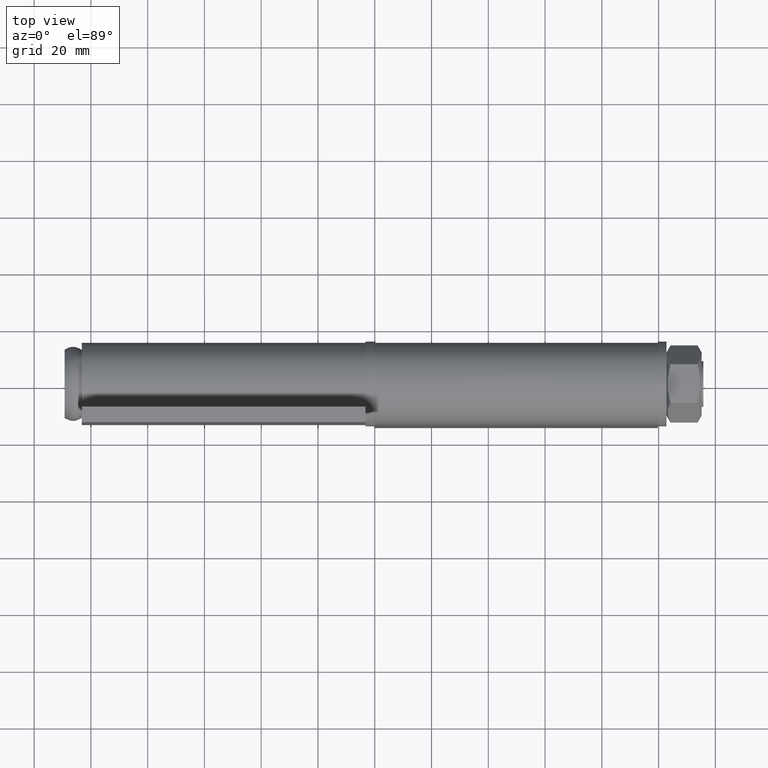
[diagram: clean part render]
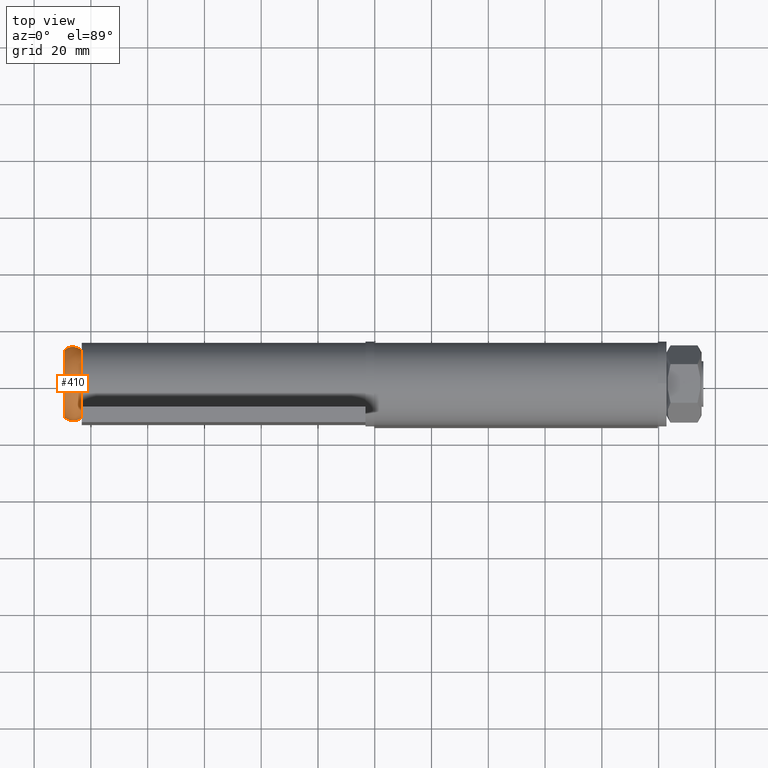
[diagram: same view with one face highlighted and labeled with its STEP entity id]
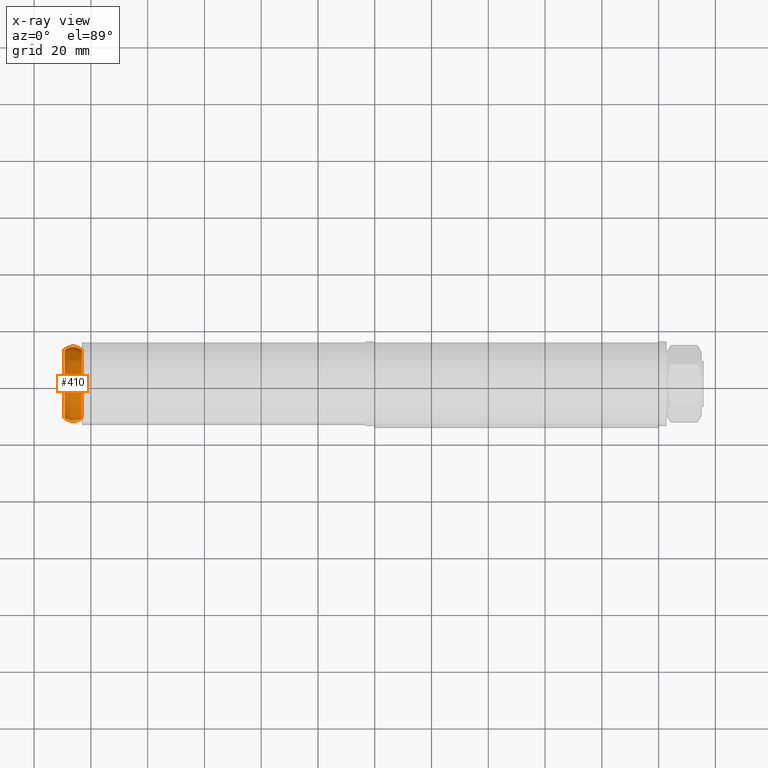
[diagram: x-ray of the same camera — body ghosted, the highlighted face saturated]
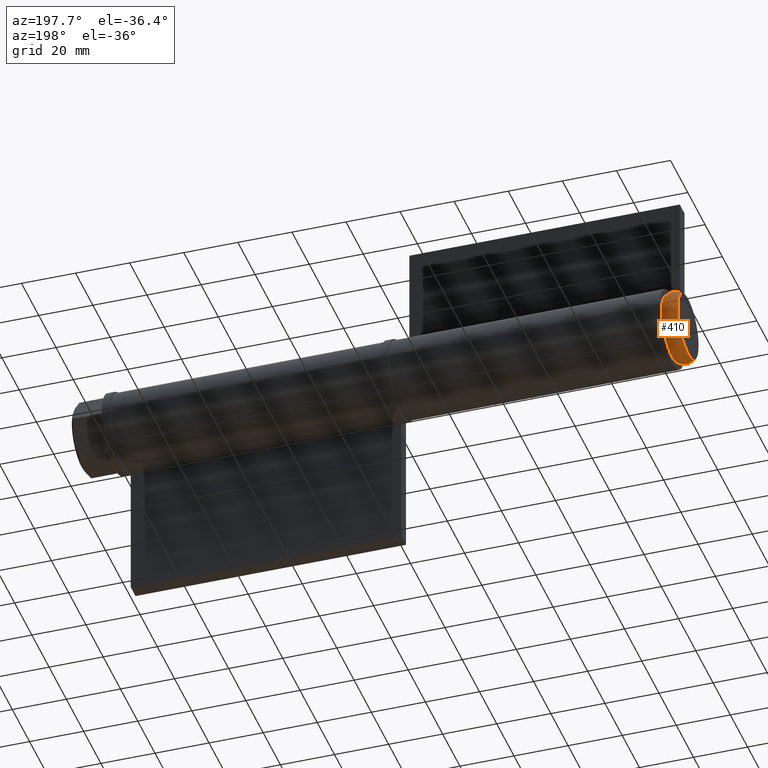
[diagram: same view with one face highlighted and labeled with its STEP entity id]
A machine part, top view. The second image highlights one B-rep face of the part: STEP entity #410.
The next image is the same camera in x-ray: the body ghosted, the highlighted face saturated — about 0% of this face is hidden behind the body in this view.
A second angle (auxiliary view) of the same face is appended — the face is thin or edge-on in the first view.
In plain terms, the highlighted face is a freeform B-spline surface patch.
Its self-contained STEP definition (entity closure, byte-faithful):
#111=B_SPLINE_CURVE_WITH_KNOTS('',3,(#703,#704,#705,#706,#707,#708),
 .UNSPECIFIED.,.F.,.F.,(4,2,4),(0.,0.351628704774406,1.),.UNSPECIFIED.);
#112=B_SPLINE_SURFACE_WITH_KNOTS('',3,3,((#629,#630,#631,#632),(#633,#634,
#635,#636),(#637,#638,#639,#640),(#641,#642,#643,#644),(#645,#646,#647,
#648),(#649,#650,#651,#652),(#653,#654,#655,#656),(#657,#658,#659,#660),
(#661,#662,#663,#664),(#665,#666,#667,#668),(#669,#670,#671,#672),(#673,
#674,#675,#676),(#677,#678,#679,#680),(#681,#682,#683,#684),(#685,#686,
#687,#688),(#689,#690,#691,#692),(#693,#694,#695,#696),(#697,#698,#699,
#700)),.UNSPECIFIED.,.T.,.F.,.F.,(4,1,1,1,1,1,1,1,1,1,1,1,1,1,1,4),(4,4),
(-3.27901317847429E-31,0.0714285714285714,0.142857142857143,0.214285714285714,
0.285714285714286,0.357142857142857,0.428571428571429,0.523809523809524,
0.547619047619048,0.571428571428571,0.666666666666667,0.714285714285714,
0.785714285714286,0.857142857142857,0.928571428571429,1.),(0.,1.),
 .UNSPECIFIED.);
#125=FACE_OUTER_BOUND('',#154,.T.);
#154=EDGE_LOOP('',(#294,#295,#296,#297));
#191=CIRCLE('',#443,12.);
#193=CIRCLE('',#445,12.);
#207=VERTEX_POINT('',#625);
#209=VERTEX_POINT('',#701);
#243=EDGE_CURVE('',#207,#207,#191,.T.);
#245=EDGE_CURVE('',#209,#209,#193,.T.);
#246=EDGE_CURVE('',#209,#207,#111,.T.);
#294=ORIENTED_EDGE('',*,*,#245,.T.);
#295=ORIENTED_EDGE('',*,*,#246,.T.);
#296=ORIENTED_EDGE('',*,*,#243,.F.);
#297=ORIENTED_EDGE('',*,*,#246,.F.);
#410=ADVANCED_FACE('',(#125),#112,.T.);
#443=AXIS2_PLACEMENT_3D('',#626,#499,#500);
#445=AXIS2_PLACEMENT_3D('',#702,#503,#504);
#499=DIRECTION('center_axis',(1.,0.,0.));
#500=DIRECTION('ref_axis',(0.,-1.,0.));
#503=DIRECTION('center_axis',(1.,0.,0.));
#504=DIRECTION('ref_axis',(0.,0.,-1.));
#625=CARTESIAN_POINT('',(-106.5,12.,1.46957615897682E-15));
#626=CARTESIAN_POINT('Origin',(-106.5,0.,0.));
#629=CARTESIAN_POINT('Ctrl Pts',(-112.5,12.0010153110627,0.000291517564356106));
#630=CARTESIAN_POINT('Ctrl Pts',(-110.660495598423,13.463148189496,0.000299513756235344));
#631=CARTESIAN_POINT('Ctrl Pts',(-108.660495598423,13.463148189496,0.000299513756234844));
#632=CARTESIAN_POINT('Ctrl Pts',(-106.5,12.0010153110627,0.000291517564357406));
#633=CARTESIAN_POINT('Ctrl Pts',(-112.5,12.0010280177832,1.79523502923595));
#634=CARTESIAN_POINT('Ctrl Pts',(-110.660495598423,13.4631704195306,2.01394035832098));
#635=CARTESIAN_POINT('Ctrl Pts',(-108.660495598423,13.4631704195306,2.01394035832098));
#636=CARTESIAN_POINT('Ctrl Pts',(-106.5,12.0010280177832,1.79523502923595));
#637=CARTESIAN_POINT('Ctrl Pts',(-112.5,11.1815182794195,5.38479486712216));
#638=CARTESIAN_POINT('Ctrl Pts',(-110.660495598423,12.543877224578,6.04083300996617));
#639=CARTESIAN_POINT('Ctrl Pts',(-108.660495598423,12.543877224578,6.04083300996618));
#640=CARTESIAN_POINT('Ctrl Pts',(-106.5,11.1815182794195,5.38479486712216));
#641=CARTESIAN_POINT('Ctrl Pts',(-112.5,7.73786939882159,9.70380403642893));
#642=CARTESIAN_POINT('Ctrl Pts',(-110.660495598423,8.68059155147818,10.8860123866073));
#643=CARTESIAN_POINT('Ctrl Pts',(-108.660495598423,8.68059155147818,10.8860123866073));
#644=CARTESIAN_POINT('Ctrl Pts',(-106.5,7.73786939882161,9.70380403642893));
#645=CARTESIAN_POINT('Ctrl Pts',(-112.5,2.76190842041704,12.0982925177427));
#646=CARTESIAN_POINT('Ctrl Pts',(-110.660495598423,3.09844930368591,13.5724334184943));
#647=CARTESIAN_POINT('Ctrl Pts',(-108.660495598423,3.09844930368591,13.5724334184943));
#648=CARTESIAN_POINT('Ctrl Pts',(-106.5,2.76190842041706,12.0982925177427));
#649=CARTESIAN_POINT('Ctrl Pts',(-112.5,-2.76321497425884,12.0985837117807));
#650=CARTESIAN_POINT('Ctrl Pts',(-110.660495598423,-3.09981624984114,13.5727870184592));
#651=CARTESIAN_POINT('Ctrl Pts',(-108.660495598423,-3.09981624984113,13.5727870184592));
#652=CARTESIAN_POINT('Ctrl Pts',(-106.5,-2.76321497425882,12.0985837117807));
#653=CARTESIAN_POINT('Ctrl Pts',(-112.5,-7.73504210139689,9.70136352866797));
#654=CARTESIAN_POINT('Ctrl Pts',(-110.660495598423,-8.67755582561862,10.8834757586284));
#655=CARTESIAN_POINT('Ctrl Pts',(-108.660495598423,-8.67755582561861,10.8834757586284));
#656=CARTESIAN_POINT('Ctrl Pts',(-106.5,-7.73504210139687,9.70136352866797));
#657=CARTESIAN_POINT('Ctrl Pts',(-112.5,-11.5710669744012,4.90545540873254));
#658=CARTESIAN_POINT('Ctrl Pts',(-110.660495598423,-12.9805849765941,5.50320537444329));
#659=CARTESIAN_POINT('Ctrl Pts',(-108.660495598423,-12.9805849765941,5.50320537444329));
#660=CARTESIAN_POINT('Ctrl Pts',(-106.5,-11.5710669744012,4.90545540873254));
#661=CARTESIAN_POINT('Ctrl Pts',(-112.5,-12.3180049717886,-0.0414521944943175));
#662=CARTESIAN_POINT('Ctrl Pts',(-110.660495598423,-13.8191007839529,-0.0464722243793956));
#663=CARTESIAN_POINT('Ctrl Pts',(-108.660495598423,-13.8191007839529,-0.0464722243793937));
#664=CARTESIAN_POINT('Ctrl Pts',(-106.5,-12.3180049717886,-0.0414521944943211));
#665=CARTESIAN_POINT('Ctrl Pts',(-112.5,-11.5096922712404,-3.55088472478457));
#666=CARTESIAN_POINT('Ctrl Pts',(-110.660495598423,-12.9116200509965,-3.98326808236707));
#667=CARTESIAN_POINT('Ctrl Pts',(-108.660495598423,-12.9116200509965,-3.98326808236707));
#668=CARTESIAN_POINT('Ctrl Pts',(-106.5,-11.5096922712404,-3.55088472478458));
#669=CARTESIAN_POINT('Ctrl Pts',(-112.5,-10.2006837910398,-6.90664965859731));
#670=CARTESIAN_POINT('Ctrl Pts',(-110.660495598423,-11.4438940424667,-7.74841139973398));
#671=CARTESIAN_POINT('Ctrl Pts',(-108.660495598423,-11.4438940424667,-7.74841139973398));
#672=CARTESIAN_POINT('Ctrl Pts',(-106.5,-10.2006837910397,-6.90664965859732));
#673=CARTESIAN_POINT('Ctrl Pts',(-112.5,-7.22021131641961,-10.1087268406726));
#674=CARTESIAN_POINT('Ctrl Pts',(-110.660495598423,-8.09992757388251,-11.3404787555237));
#675=CARTESIAN_POINT('Ctrl Pts',(-108.660495598423,-8.0999275738825,-11.3404787555237));
#676=CARTESIAN_POINT('Ctrl Pts',(-106.5,-7.22021131641959,-10.1087268406726));
#677=CARTESIAN_POINT('Ctrl Pts',(-112.5,-2.14454802847163,-12.0950128726016));
#678=CARTESIAN_POINT('Ctrl Pts',(-110.660495598423,-2.40598797095542,-13.5687998804539));
#679=CARTESIAN_POINT('Ctrl Pts',(-108.660495598423,-2.40598797095541,-13.5687998804539));
#680=CARTESIAN_POINT('Ctrl Pts',(-106.5,-2.14454802847161,-12.0950128726016));
#681=CARTESIAN_POINT('Ctrl Pts',(-112.5,2.76077215090738,-12.0995701258841));
#682=CARTESIAN_POINT('Ctrl Pts',(-110.660495598423,3.09709250457807,-13.5739681148501));
#683=CARTESIAN_POINT('Ctrl Pts',(-108.660495598423,3.09709250457807,-13.5739681148501));
#684=CARTESIAN_POINT('Ctrl Pts',(-106.5,2.76077215090739,-12.0995701258841));
#685=CARTESIAN_POINT('Ctrl Pts',(-112.5,7.73941062799191,-9.70187048579352));
#686=CARTESIAN_POINT('Ctrl Pts',(-110.660495598423,8.68226565197856,-10.8839064577439));
#687=CARTESIAN_POINT('Ctrl Pts',(-108.660495598423,8.68226565197857,-10.8839064577439));
#688=CARTESIAN_POINT('Ctrl Pts',(-106.5,7.73941062799193,-9.70187048579352));
#689=CARTESIAN_POINT('Ctrl Pts',(-112.5,11.181442039096,-5.38486620290742));
#690=CARTESIAN_POINT('Ctrl Pts',(-110.660495598423,12.5437438443704,-6.04101205742228));
#691=CARTESIAN_POINT('Ctrl Pts',(-108.660495598423,12.5437438443704,-6.04101205742229));
#692=CARTESIAN_POINT('Ctrl Pts',(-106.5,11.181442039096,-5.38486620290742));
#693=CARTESIAN_POINT('Ctrl Pts',(-112.5,12.0010026043421,-1.79465199410724));
#694=CARTESIAN_POINT('Ctrl Pts',(-110.660495598423,13.4631259594614,-2.01334133080851));
#695=CARTESIAN_POINT('Ctrl Pts',(-108.660495598423,13.4631259594614,-2.01334133080851));
#696=CARTESIAN_POINT('Ctrl Pts',(-106.5,12.0010026043421,-1.79465199410724));
#697=CARTESIAN_POINT('Ctrl Pts',(-112.5,12.0010153110627,0.000291517564356106));
#698=CARTESIAN_POINT('Ctrl Pts',(-110.660495598423,13.463148189496,0.000299513756235344));
#699=CARTESIAN_POINT('Ctrl Pts',(-108.660495598423,13.463148189496,0.000299513756234844));
#700=CARTESIAN_POINT('Ctrl Pts',(-106.5,12.0010153110627,0.000291517564357406));
#701=CARTESIAN_POINT('',(-112.5,12.,-7.34788079488412E-16));
#702=CARTESIAN_POINT('Origin',(-112.5,-2.06659147356116E-14,0.));
#703=CARTESIAN_POINT('Ctrl Pts',(-112.5,12.,-7.34788079488412E-16));
#704=CARTESIAN_POINT('Ctrl Pts',(-111.853177449847,12.5141087148489,3.21332739879528E-16));
#705=CARTESIAN_POINT('Ctrl Pts',(-111.18651078318,12.8474420481822,1.09694237933952E-15));
#706=CARTESIAN_POINT('Ctrl Pts',(-109.234136662812,13.2813029638195,2.50495729060702E-15));
#707=CARTESIAN_POINT('Ctrl Pts',(-107.900803329479,12.9479696304862,2.46413573063544E-15));
#708=CARTESIAN_POINT('Ctrl Pts',(-106.5,12.,1.46957615897682E-15));